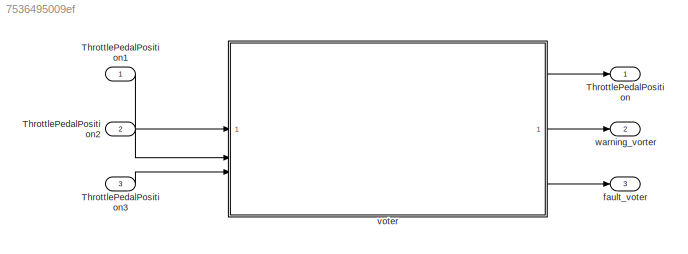
MODEL slx_7536495009ef
KIND model
CONFIG AbsTol = auto
CONFIG EnableMultiTasking = on
CONFIG FixedStep = 0.1
CONFIG MaxStep = auto
CONFIG MinStep = auto
CONFIG RelTol = 1e-3
CONFIG SampleTimeConstraint = Unconstrained
CONFIG SolverName = FixedStepAuto
CONFIG StartTime = 0.0
CONFIG StopTime = 20
BLOCK [Outport] ThrottlePedalPosition
BLOCK [Inport] ThrottlePedalPosition1
  OutDataTypeStr = single
BLOCK [Inport] ThrottlePedalPosition2
  OutDataTypeStr = single
  Port = 2
BLOCK [Inport] ThrottlePedalPosition3
  OutDataTypeStr = single
  Port = 3
BLOCK [Outport] fault_voter
  OutDataTypeStr = boolean
  Port = 3
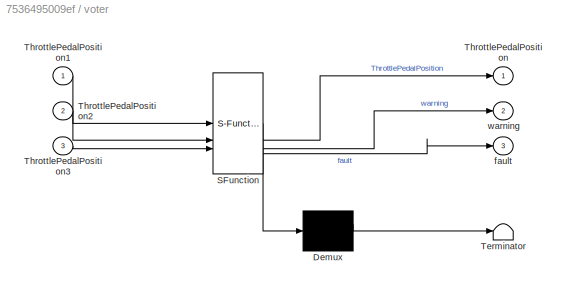
BLOCK [SubSystem] voter
  ErrorFcn = Stateflow.Translate.translate
  PermitHierarchicalResolution = ExplicitOnly
  SFBlockType = MATLAB Function
  TreatAsAtomicUnit = on
BLOCK [Demux] voter/ Demux 
  Outputs = 1
BLOCK [S-Function] voter/ SFunction 
  EnableBusSupport = on
  FunctionName = sf_sfun
  PortCounts = [3 4]
  SFcnIsStateOwnerBlock = off
  SFunctionDeploymentMode = off
  Tag = Stateflow S-Function 2
BLOCK [Terminator] voter/ Terminator 
BLOCK [Outport] voter/ThrottlePedalPosition
BLOCK [Inport] voter/ThrottlePedalPosition1
BLOCK [Inport] voter/ThrottlePedalPosition2
  Port = 2
BLOCK [Inport] voter/ThrottlePedalPosition3
  Port = 3
BLOCK [Outport] voter/fault
  Port = 3
BLOCK [Outport] voter/warning
  Port = 2
BLOCK [Outport] warning_vorter
  OutDataTypeStr = boolean
  Port = 2
LINE ThrottlePedalPosition1:1 -> voter:1
LINE ThrottlePedalPosition2:1 -> voter:2
LINE ThrottlePedalPosition3:1 -> voter:3
LINE voter:1 -> ThrottlePedalPosition:1
LINE voter:2 -> warning_vorter:1
LINE voter:3 -> fault_voter:1
CHART voter states=1 transitions=1
  STATE_LABEL 'eML_blk_kernel()'
  STATE_LABEL 'SCRIPT:\nfunction [ThrottlePedalPosition,warning, fault] = voter( ...\n    ThrottlePedalPosition1,ThrottlePedalPosition2,ThrottlePedalPosition3)\n% initialization\nwarning = boolean(0);\nfault = boolean(0);\nThrottlePedalPosition = single(0);\n\nif (abs(ThrottlePedalPosition1 - ThrottlePedalPosition2) > 0.025)\n    % one sensor might be faulty\n\n    if(abs(ThrottlePedalPosition1 - ThrottlePedalPosition3) > ...<+1568ch>'
CHART  states=0 transitions=0
